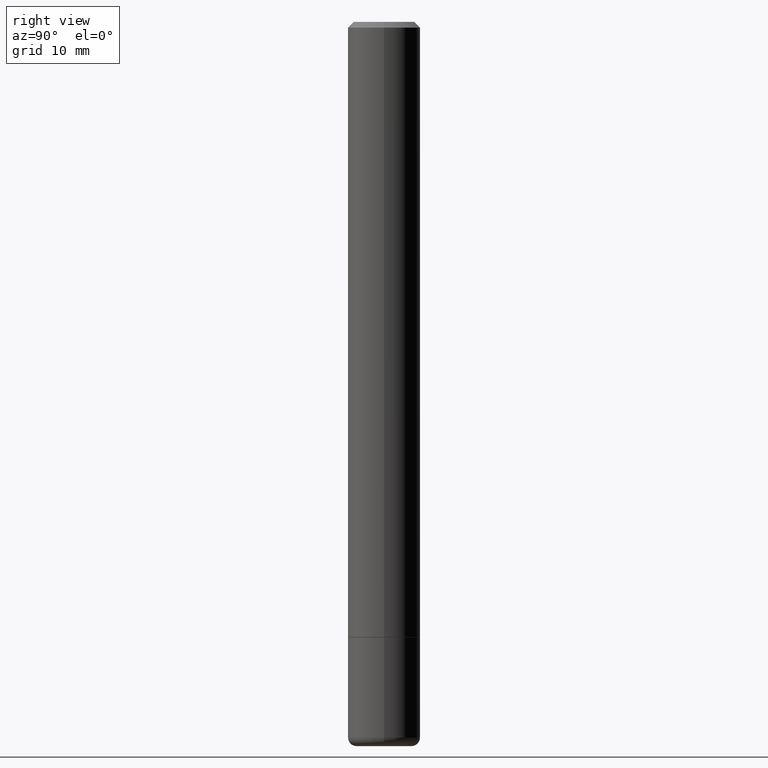
[diagram: clean part render]
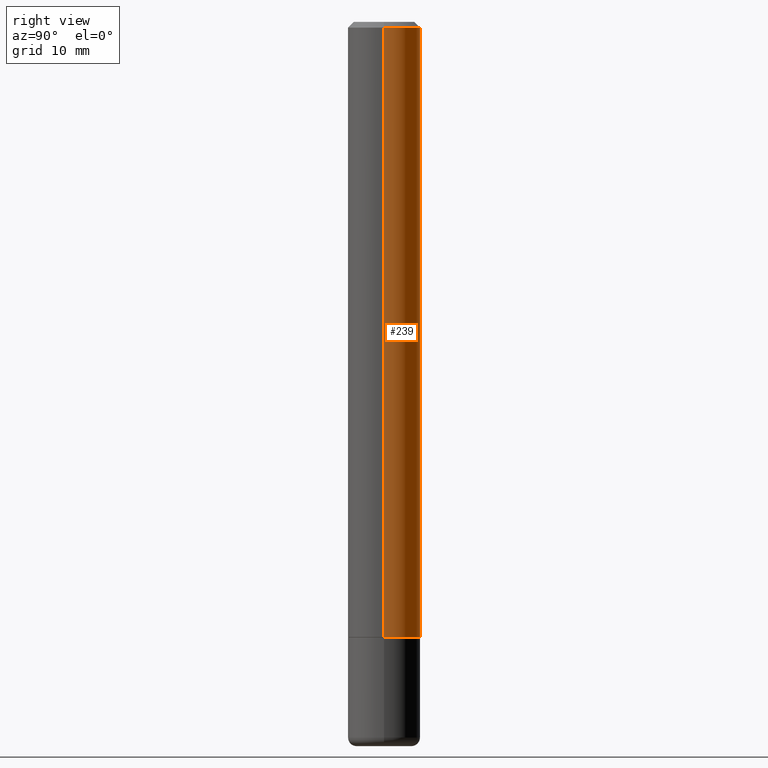
[diagram: same view with one face highlighted and labeled with its STEP entity id]
A machine part, right view. The second image highlights one B-rep face of the part: STEP entity #239.
In plain terms, the highlighted cylindrical surface (edge-blend (fillet) strip) has radius 3.175 mm, axis along (-0, 0, 1).
Its self-contained STEP definition (entity closure, byte-faithful):
#1 = AXIS2_PLACEMENT_3D ( 'NONE', #217, #142, #222 ) ;
#7 = AXIS2_PLACEMENT_3D ( 'NONE', #277, #425, #91 ) ;
#20 = CARTESIAN_POINT ( 'NONE',  ( 0.000000000000000000, 0.000000000000000000, 0.000000000000000000 ) ) ;
#31 = EDGE_LOOP ( 'NONE', ( #106, #186, #176, #388 ) ) ;
#37 = CIRCLE ( 'NONE', #1, 0.1249999999999992090 ) ;
#91 = DIRECTION ( 'NONE',  ( 1.000000000000000000, -6.982962677686268288E-15, 0.000000000000000000 ) ) ;
#106 = ORIENTED_EDGE ( 'NONE', *, *, #322, .T. ) ;
#132 = DIRECTION ( 'NONE',  ( 1.000000000000000000, -6.982962677686265922E-15, 4.876176775795935793E-29 ) ) ;
#142 = DIRECTION ( 'NONE',  ( -2.445468806185136597E-29, 3.491481338843145583E-15, 1.000000000000000000 ) ) ;
#153 = VERTEX_POINT ( 'NONE', #235 ) ;
#168 = DIRECTION ( 'NONE',  ( -2.445468806185136597E-29, 3.491481338843145583E-15, 1.000000000000000000 ) ) ;
#173 = CARTESIAN_POINT ( 'NONE',  ( 0.1249999999999992090, -9.273918764982992215E-16, -0.02000000000000009409 ) ) ;
#176 = ORIENTED_EDGE ( 'NONE', *, *, #437, .F. ) ;
#186 = ORIENTED_EDGE ( 'NONE', *, *, #380, .T. ) ;
#207 = VECTOR ( 'NONE', #432, 39.37007874015748143 ) ;
#217 = CARTESIAN_POINT ( 'NONE',  ( 4.890937612370296805E-31, -6.982962677686323656E-17, -0.02000000000000009409 ) ) ;
#222 = DIRECTION ( 'NONE',  ( 1.000000000000000000, -6.982962677686267499E-15, 0.000000000000000000 ) ) ;
#235 = CARTESIAN_POINT ( 'NONE',  ( 0.1249999999999994865, -8.288776698413622377E-15, -2.124000000000000110 ) ) ;
#239 = ADVANCED_FACE ( 'NONE', ( #423 ), #279, .T. ) ;
#269 = EDGE_CURVE ( 'NONE', #153, #369, #392, .T. ) ;
#277 = CARTESIAN_POINT ( 'NONE',  ( 5.194175744337230786E-29, -7.415906363702842194E-15, -2.124000000000000110 ) ) ;
#279 = CYLINDRICAL_SURFACE ( 'NONE', #382, 0.1249999999999993477 ) ;
#285 = CARTESIAN_POINT ( 'NONE',  ( 0.1249999999999993477, -8.728703347107787043E-16, 6.095220969744888212E-30 ) ) ;
#292 = CARTESIAN_POINT ( 'NONE',  ( -0.1249999999999994865, -2.854689575539726725E-15, -2.124000000000000110 ) ) ;
#312 = VERTEX_POINT ( 'NONE', #463 ) ;
#322 = EDGE_CURVE ( 'NONE', #153, #464, #350, .T. ) ;
#336 = LINE ( 'NONE', #482, #489 ) ;
#350 = CIRCLE ( 'NONE', #7, 0.1249999999999994865 ) ;
#369 = VERTEX_POINT ( 'NONE', #173 ) ;
#380 = EDGE_CURVE ( 'NONE', #464, #312, #336, .T. ) ;
#382 = AXIS2_PLACEMENT_3D ( 'NONE', #20, #168, #132 ) ;
#388 = ORIENTED_EDGE ( 'NONE', *, *, #269, .F. ) ;
#392 = LINE ( 'NONE', #285, #207 ) ;
#423 = FACE_OUTER_BOUND ( 'NONE', #31, .T. ) ;
#425 = DIRECTION ( 'NONE',  ( -2.445468806185136597E-29, 3.491481338843145583E-15, 1.000000000000000000 ) ) ;
#432 = DIRECTION ( 'NONE',  ( -2.445468806185136877E-29, 3.491481338843145188E-15, 1.000000000000000000 ) ) ;
#437 = EDGE_CURVE ( 'NONE', #369, #312, #37, .T. ) ;
#463 = CARTESIAN_POINT ( 'NONE',  ( -0.1249999999999992090, 8.030407079339147158E-16, -0.02000000000000009409 ) ) ;
#464 = VERTEX_POINT ( 'NONE', #292 ) ;
#474 = DIRECTION ( 'NONE',  ( -2.445468806185136877E-29, 3.491481338843145188E-15, 1.000000000000000000 ) ) ;
#482 = CARTESIAN_POINT ( 'NONE',  ( -0.1249999999999993477, 8.881784197001205978E-16, -6.148668862818600698E-30 ) ) ;
#489 = VECTOR ( 'NONE', #474, 39.37007874015748143 ) ;